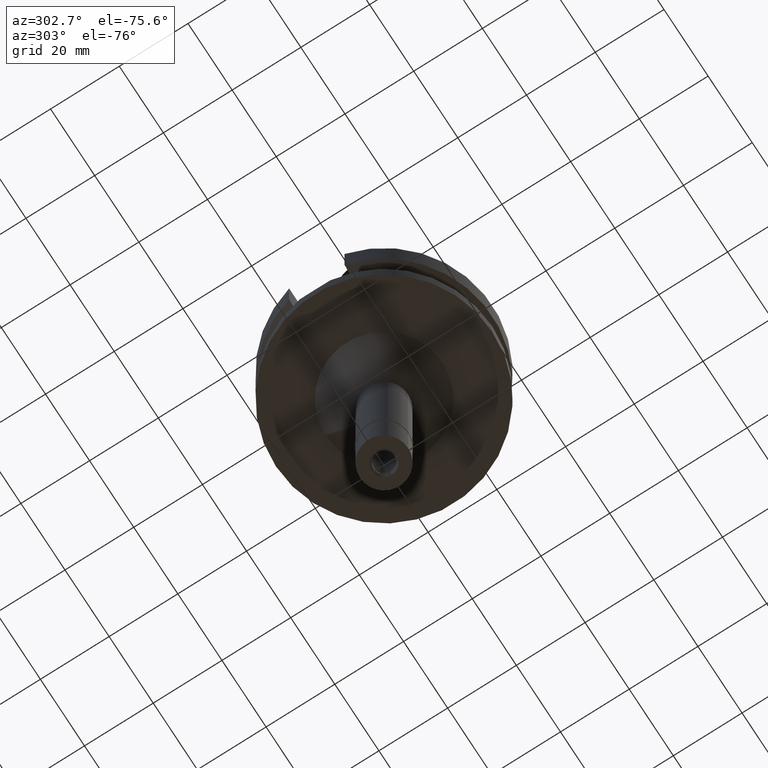
[diagram: clean part render]
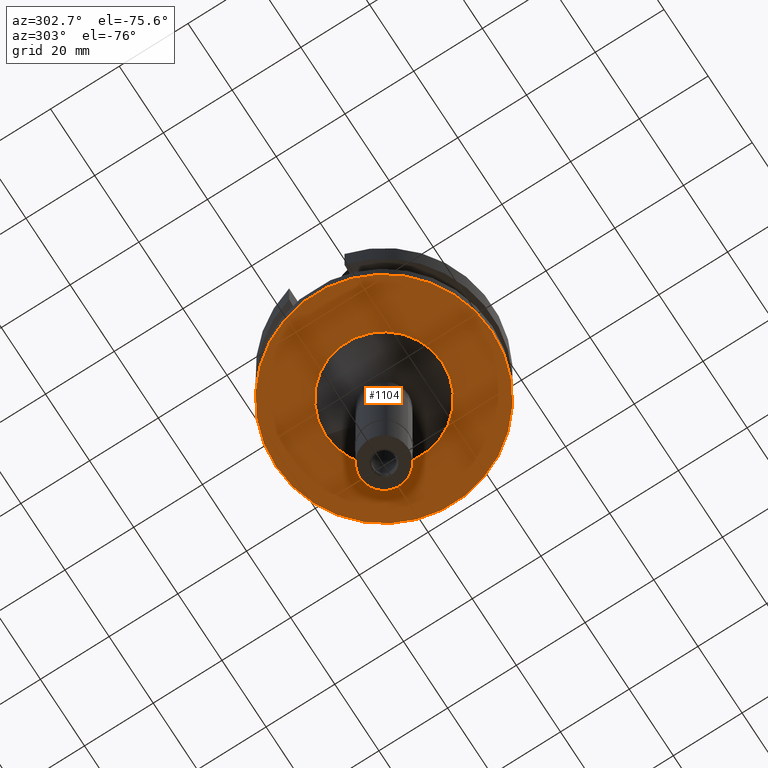
[diagram: same view with one face highlighted and labeled with its STEP entity id]
A machine part, auxiliary view. The second image highlights one B-rep face of the part: STEP entity #1104.
In plain terms, the highlighted planar face has unit normal (0, 0, -1).
Its self-contained STEP definition (entity closure, byte-faithful):
#35 = CIRCLE ( 'NONE', #1351, 17.00000000000000000 ) ;
#81 = DIRECTION ( 'NONE',  ( 0.0000000000000000000, 1.000000000000000000, 0.0000000000000000000 ) ) ;
#110 = EDGE_LOOP ( 'NONE', ( #152, #2674 ) ) ;
#152 = ORIENTED_EDGE ( 'NONE', *, *, #1148, .F. ) ;
#239 = DIRECTION ( 'NONE',  ( 0.0000000000000000000, 0.0000000000000000000, 1.000000000000000000 ) ) ;
#343 = DIRECTION ( 'NONE',  ( 0.0000000000000000000, 0.0000000000000000000, -1.000000000000000000 ) ) ;
#371 = EDGE_CURVE ( 'NONE', #1189, #937, #35, .T. ) ;
#411 = DIRECTION ( 'NONE',  ( 0.0000000000000000000, 0.0000000000000000000, -1.000000000000000000 ) ) ;
#515 = CARTESIAN_POINT ( 'NONE',  ( 0.0000000000000000000, -17.00000000000000000, -27.00000000000000000 ) ) ;
#547 = DIRECTION ( 'NONE',  ( 0.0000000000000000000, -1.000000000000000000, 0.0000000000000000000 ) ) ;
#574 = FACE_OUTER_BOUND ( 'NONE', #110, .T. ) ;
#583 = CARTESIAN_POINT ( 'NONE',  ( 0.0000000000000000000, 17.00000000000000000, -27.00000000000000000 ) ) ;
#752 = FACE_BOUND ( 'NONE', #2091, .T. ) ;
#892 = EDGE_CURVE ( 'NONE', #937, #1189, #1692, .T. ) ;
#937 = VERTEX_POINT ( 'NONE', #515 ) ;
#984 = AXIS2_PLACEMENT_3D ( 'NONE', #1230, #2098, #81 ) ;
#993 = PLANE ( 'NONE',  #1535 ) ;
#1024 = AXIS2_PLACEMENT_3D ( 'NONE', #2382, #343, #547 ) ;
#1104 = ADVANCED_FACE ( 'NONE', ( #574, #752 ), #993, .T. ) ;
#1148 = EDGE_CURVE ( 'NONE', #2176, #1973, #2769, .T. ) ;
#1186 = EDGE_CURVE ( 'NONE', #1973, #2176, #2443, .T. ) ;
#1189 = VERTEX_POINT ( 'NONE', #583 ) ;
#1230 = CARTESIAN_POINT ( 'NONE',  ( 0.0000000000000000000, 2.118271568485000005E-14, -27.00000000000000000 ) ) ;
#1351 = AXIS2_PLACEMENT_3D ( 'NONE', #2631, #411, #1703 ) ;
#1387 = CARTESIAN_POINT ( 'NONE',  ( 0.0000000000000000000, 2.118271568485000005E-14, -27.00000000000000000 ) ) ;
#1444 = CARTESIAN_POINT ( 'NONE',  ( 0.0000000000000000000, -31.50000000000000000, -27.00000000000000000 ) ) ;
#1535 = AXIS2_PLACEMENT_3D ( 'NONE', #2381, #1893, #2369 ) ;
#1692 = CIRCLE ( 'NONE', #1024, 17.00000000000000000 ) ;
#1703 = DIRECTION ( 'NONE',  ( 0.0000000000000000000, 1.000000000000000000, 0.0000000000000000000 ) ) ;
#1893 = DIRECTION ( 'NONE',  ( 0.0000000000000000000, 0.0000000000000000000, -1.000000000000000000 ) ) ;
#1922 = ORIENTED_EDGE ( 'NONE', *, *, #892, .F. ) ;
#1939 = DIRECTION ( 'NONE',  ( 0.0000000000000000000, -1.000000000000000000, 0.0000000000000000000 ) ) ;
#1973 = VERTEX_POINT ( 'NONE', #1444 ) ;
#2091 = EDGE_LOOP ( 'NONE', ( #2599, #1922 ) ) ;
#2098 = DIRECTION ( 'NONE',  ( 0.0000000000000000000, 0.0000000000000000000, 1.000000000000000000 ) ) ;
#2176 = VERTEX_POINT ( 'NONE', #2703 ) ;
#2209 = AXIS2_PLACEMENT_3D ( 'NONE', #1387, #239, #1939 ) ;
#2369 = DIRECTION ( 'NONE',  ( 0.0000000000000000000, -1.000000000000000000, 0.0000000000000000000 ) ) ;
#2381 = CARTESIAN_POINT ( 'NONE',  ( 0.0000000000000000000, 0.0000000000000000000, -27.00000000000000000 ) ) ;
#2382 = CARTESIAN_POINT ( 'NONE',  ( 0.0000000000000000000, 0.0000000000000000000, -27.00000000000000000 ) ) ;
#2443 = CIRCLE ( 'NONE', #2209, 31.50000000000000000 ) ;
#2599 = ORIENTED_EDGE ( 'NONE', *, *, #371, .F. ) ;
#2631 = CARTESIAN_POINT ( 'NONE',  ( 0.0000000000000000000, 0.0000000000000000000, -27.00000000000000000 ) ) ;
#2674 = ORIENTED_EDGE ( 'NONE', *, *, #1186, .F. ) ;
#2703 = CARTESIAN_POINT ( 'NONE',  ( 0.0000000000000000000, 31.50000000000000000, -27.00000000000000000 ) ) ;
#2769 = CIRCLE ( 'NONE', #984, 31.50000000000000000 ) ;